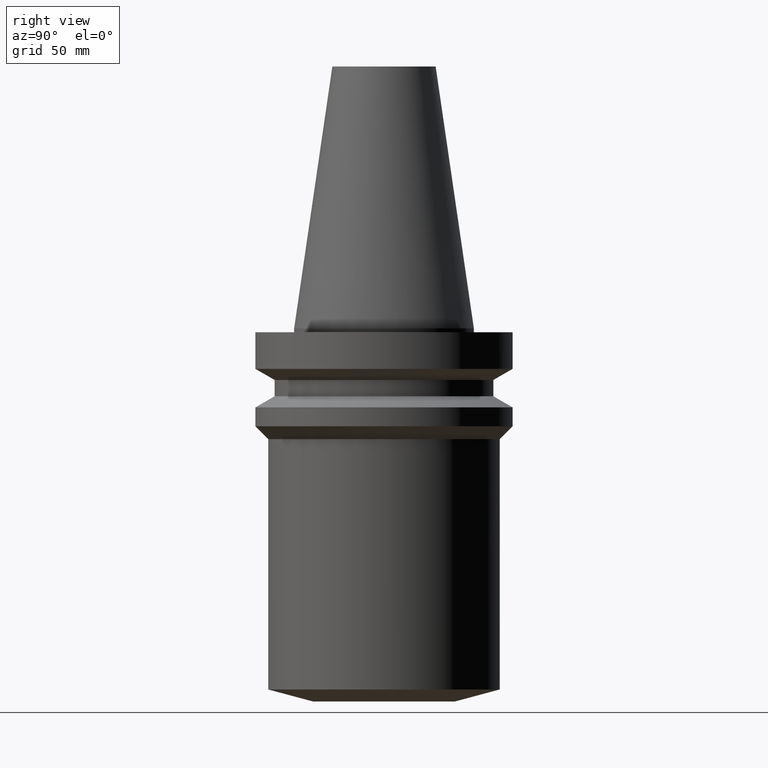
[diagram: clean part render]
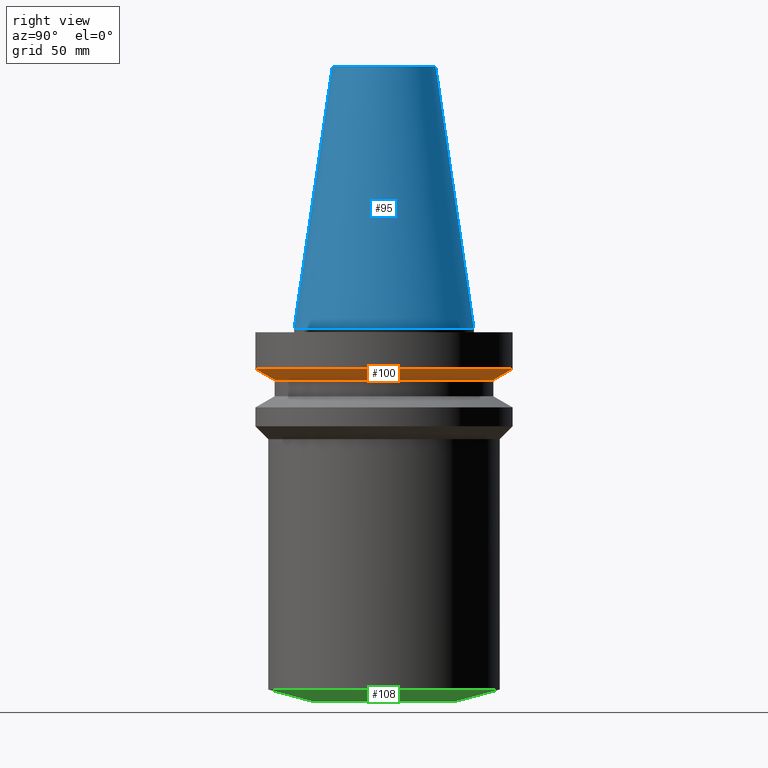
[diagram: same view with three faces highlighted in distinct colors, each labeled with its STEP entity id]
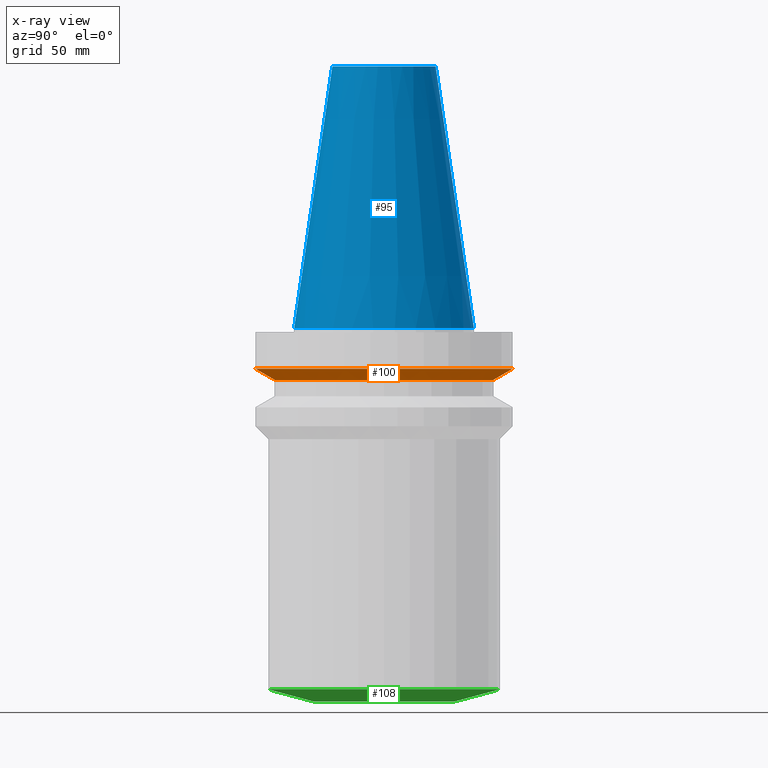
[diagram: x-ray of the same camera — body ghosted, the three highlighted faces saturated]
A machine part, right view with three faces highlighted in distinct colors.
The next image is the same camera in x-ray (body ghosted, the three faces saturated) — at least one of them is partly hidden behind the body in this view.
Their STEP definitions:

[orange] entity #100 — the highlighted conical surface has half-angle 60 deg.
#64=EDGE_CURVE('Unnamed[1]',#155,#155,#156,.T.);
#84=EDGE_CURVE('Unnamed[1]',#183,#183,#184,.T.);
#100=ADVANCED_FACE('Unnamed[1]',(#207,#208),#209,.T.);
#155=VERTEX_POINT('',#269);
#156=CIRCLE('',#270,42.5);
#183=VERTEX_POINT('',#305);
#184=CIRCLE('',#306,50.0);
#207=FACE_BOUND('',#335,.T.);
#208=FACE_BOUND('',#336,.T.);
#209=CONICAL_SURFACE('',#337,46.25,1.04719755108882);
#269=CARTESIAN_POINT('',(1.2264915470779E-015,42.5,-20.03012702));
#270=AXIS2_PLACEMENT_3D('',#394,#395,#396);
#305=CARTESIAN_POINT('',(9.61347737330672E-016,50.0,-15.7));
#306=AXIS2_PLACEMENT_3D('',#421,#422,#423);
#335=EDGE_LOOP('',(#448));
#336=EDGE_LOOP('',(#449));
#337=AXIS2_PLACEMENT_3D('',#450,#451,#452);
#394=CARTESIAN_POINT('',(1.2264915470779E-015,2.45298309415579E-015,-20.03012702));
#395=DIRECTION('',(6.12323399573677E-017,1.22464679914735E-016,-1.0));
#396=DIRECTION('',(-1.23259516440783E-032,1.0,1.22464679914735E-016));
#421=CARTESIAN_POINT('',(9.61347737330672E-016,1.92269547466134E-015,-15.7));
#422=DIRECTION('',(6.12323399573677E-017,1.22464679914735E-016,-1.0));
#423=DIRECTION('',(-1.23259516440783E-032,1.0,1.22464679914735E-016));
#448=ORIENTED_EDGE('',*,*,#64,.F.);
#449=ORIENTED_EDGE('',*,*,#84,.T.);
#450=CARTESIAN_POINT('',(1.09391964220428E-015,2.18783928440857E-015,-17.86506351));
#451=DIRECTION('',(-6.12323399573676E-017,-1.22464679914735E-016,1.0));
#452=DIRECTION('',(-1.23259516440783E-032,1.0,1.22464679914735E-016));

[blue] entity #95 — the highlighted conical surface has half-angle 8.297 deg.
#53=EDGE_CURVE('Unnamed[1]',#137,#137,#138,.T.);
#71=EDGE_CURVE('Unnamed[1]',#165,#165,#166,.T.);
#95=ADVANCED_FACE('Unnamed[1]',(#199,#200),#201,.T.);
#137=VERTEX_POINT('',#247);
#138=CIRCLE('',#248,20.0791666658118);
#165=VERTEX_POINT('',#282);
#166=CIRCLE('',#283,34.925);
#199=FACE_BOUND('',#325,.T.);
#200=FACE_BOUND('',#326,.T.);
#201=CONICAL_SURFACE('',#327,27.5020833329059,0.144812498247162);
#247=CARTESIAN_POINT('',(-6.23345220766003E-015,20.0791666658118,101.8));
#248=AXIS2_PLACEMENT_3D('',#373,#374,#375);
#282=CARTESIAN_POINT('',(-4.30483861169435E-031,34.925,4.27707894602213E-015));
#283=AXIS2_PLACEMENT_3D('',#405,#406,#407);
#325=EDGE_LOOP('',(#439));
#326=EDGE_LOOP('',(#440));
#327=AXIS2_PLACEMENT_3D('',#441,#442,#443);
#373=CARTESIAN_POINT('',(-6.23345220766003E-015,-1.24669044153201E-014,101.8));
#374=DIRECTION('',(6.12323399573677E-017,1.22464679914735E-016,-1.0));
#375=DIRECTION('',(-1.23259516440783E-032,1.0,1.22464679914735E-016));
#405=CARTESIAN_POINT('',(0.0,0.0,0.0));
#406=DIRECTION('',(6.12323399573677E-017,1.22464679914735E-016,-1.0));
#407=DIRECTION('',(-1.23259516440783E-032,1.0,1.22464679914735E-016));
#439=ORIENTED_EDGE('',*,*,#71,.F.);
#440=ORIENTED_EDGE('',*,*,#53,.T.);
#441=CARTESIAN_POINT('',(-3.11672610383001E-015,-6.23345220766003E-015,50.9));
#442=DIRECTION('',(6.12323399573677E-017,1.22464679914735E-016,-1.0));
#443=DIRECTION('',(-1.23259516440783E-032,1.0,1.22464679914735E-016));

[green] entity #108 — the highlighted conical surface has half-angle 75 deg.
#82=EDGE_CURVE('Unnamed[1]',#180,#180,#181,.T.);
#102=EDGE_CURVE('Unnamed[1]',#211,#211,#212,.T.);
#108=ADVANCED_FACE('Unnamed[1]',(#220,#221),#222,.T.);
#180=VERTEX_POINT('',#301);
#181=CIRCLE('',#302,45.0);
#211=VERTEX_POINT('',#340);
#212=CIRCLE('',#341,27.5);
#220=FACE_BOUND('',#351,.T.);
#221=FACE_BOUND('',#352,.T.);
#222=CONICAL_SURFACE('',#353,36.25,1.30899693904639);
#301=CARTESIAN_POINT('',(8.5915640631372E-015,45.0,-140.310889133405));
#302=AXIS2_PLACEMENT_3D('',#418,#419,#420);
#340=CARTESIAN_POINT('',(8.87868929381831E-015,27.5,-145.0));
#341=AXIS2_PLACEMENT_3D('',#453,#454,#455);
#351=EDGE_LOOP('',(#463));
#352=EDGE_LOOP('',(#464));
#353=AXIS2_PLACEMENT_3D('',#465,#466,#467);
#418=CARTESIAN_POINT('',(8.5915640631372E-015,1.71831281262744E-014,-140.310889133405));
#419=DIRECTION('',(6.12323399573677E-017,1.22464679914735E-016,-1.0));
#420=DIRECTION('',(-1.23259516440783E-032,1.0,1.22464679914735E-016));
#453=CARTESIAN_POINT('',(8.87868929381831E-015,1.77573785876366E-014,-145.0));
#454=DIRECTION('',(6.12323399573677E-017,1.22464679914735E-016,-1.0));
#455=DIRECTION('',(-1.23259516440783E-032,1.0,1.22464679914735E-016));
#463=ORIENTED_EDGE('',*,*,#102,.F.);
#464=ORIENTED_EDGE('',*,*,#82,.T.);
#465=CARTESIAN_POINT('',(8.73512667847776E-015,1.74702533569555E-014,-142.655444566703));
#466=DIRECTION('',(-6.12323399573677E-017,-1.22464679914735E-016,1.0));
#467=DIRECTION('',(-1.23259516440783E-032,1.0,1.22464679914735E-016));